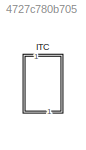
MODEL slx_4727c780b705
KIND library
CONFIG AbsTol = auto
CONFIG EnableMultiTasking = off
CONFIG FixedStep = auto
CONFIG MaxStep = auto
CONFIG MinStep = auto
CONFIG RelTol = 1e-3
CONFIG SampleTimeConstraint = Unconstrained
CONFIG SolverName = VariableStepAuto
CONFIG StartTime = 0.0
CONFIG StopTime = 10.0
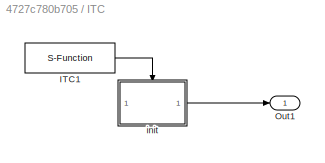
BLOCK [SubSystem] ITC
  NameLocation = right
BLOCK [S-Function] ITC/ITC1
  EnableBusSupport = off
  FunctionName = InitTriggerControl
  Parameters = CodeID, 0
  SFcnIsStateOwnerBlock = off
  SFunctionDeploymentMode = off
BLOCK [Outport] ITC/Out1
  VectorParamsAs1DForOutWhenUnconnected = off
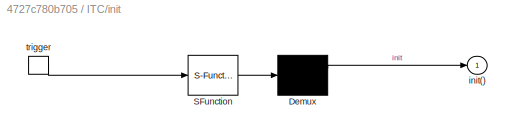
BLOCK [SubSystem] ITC/init
  ErrorFcn = Stateflow.Translate.translate
  PermitHierarchicalResolution = ExplicitOnly
  RTWFcnName = InitTrigger_ITC_1
  RTWFcnNameOpts = User specified
  RTWSystemCode = Nonreusable function
  SFBlockType = MATLAB Function
  TreatAsAtomicUnit = on
BLOCK [Demux] ITC/init/ Demux 
  Outputs = 1
BLOCK [S-Function] ITC/init/ SFunction 
  EnableBusSupport = off
  FunctionName = sf_sfun
  PortCounts = [1 1]
  SFcnIsStateOwnerBlock = off
  SFunctionDeploymentMode = off
  Tag = Stateflow S-Function 1
BLOCK [Outport] ITC/init/init()
  VectorParamsAs1DForOutWhenUnconnected = off
BLOCK [TriggerPort] ITC/init/trigger
  ShowOutputPort = on
  StatesWhenEnabling = held
  TriggerType = function-call
  VariantControl = (inherit)
CHART ITC/init states=1 transitions=1
  STATE_LABEL 'eML_blk_kernel()'
  STATE_LABEL 'SCRIPT:\nfunction init\n% Invoke the function trigger output\ninit();'
CHART  states=0 transitions=0
